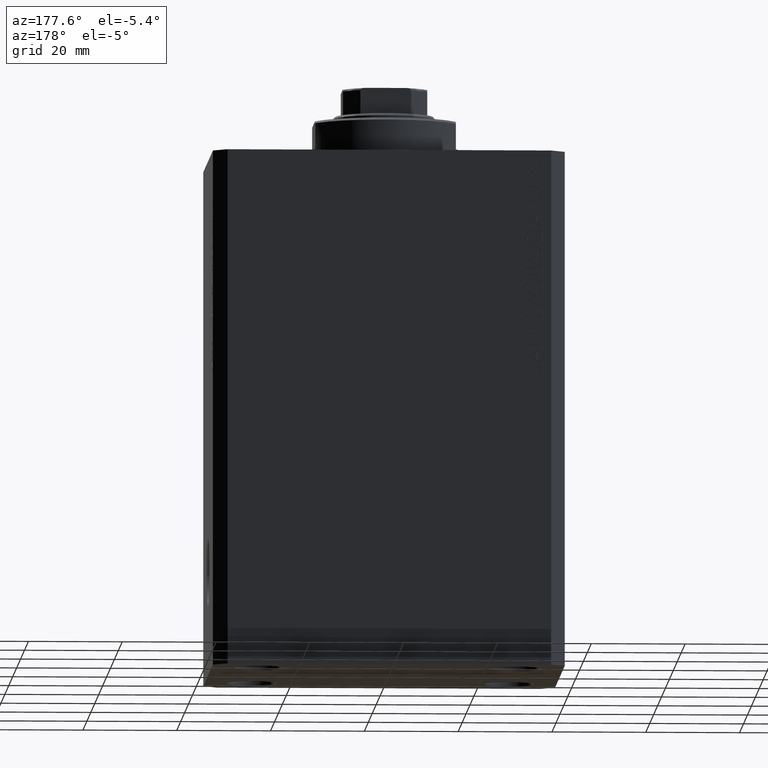
[diagram: clean part render]
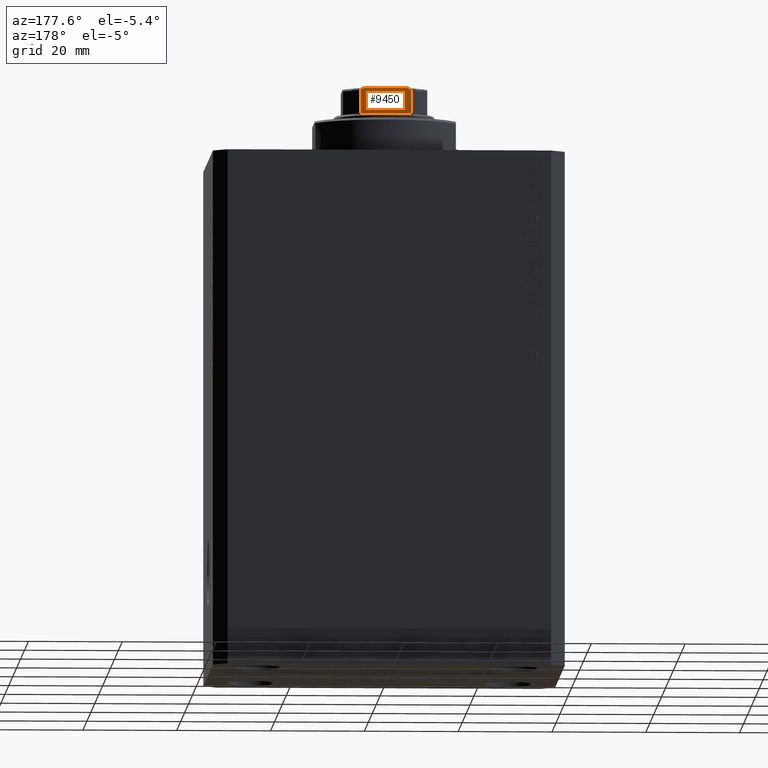
[diagram: same view with one face highlighted and labeled with its STEP entity id]
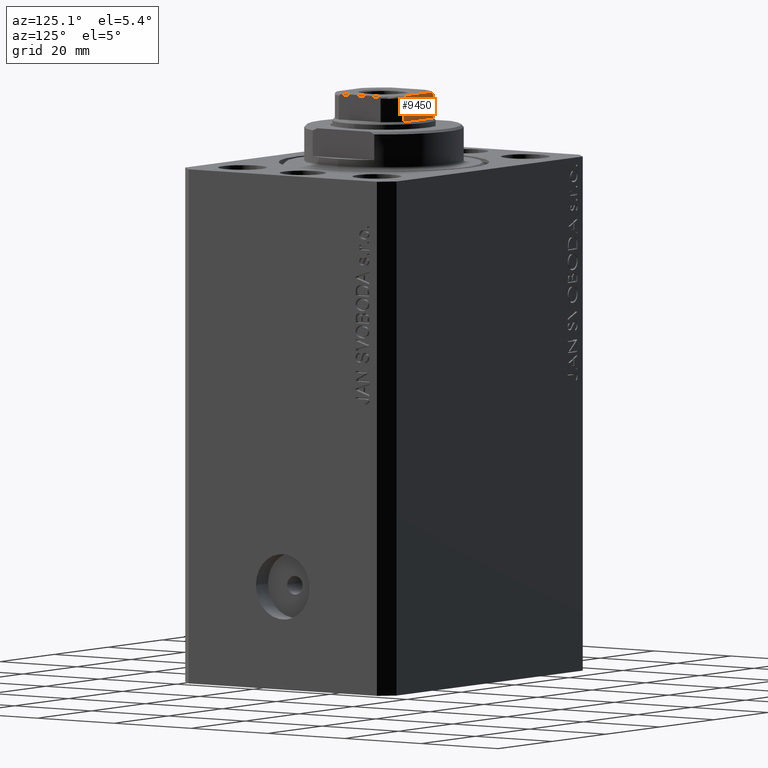
[diagram: same view with one face highlighted and labeled with its STEP entity id]
A machine part, auxiliary view. The second image highlights one B-rep face of the part: STEP entity #9450.
A second angle (auxiliary view) of the same face is appended — the face is thin or edge-on in the first view.
In plain terms, the highlighted planar face has unit normal (0, -1, 0).
Its self-contained STEP definition (entity closure, byte-faithful):
#22 = CARTESIAN_POINT ( 'NONE',  ( 5.074490744525495423, 8.999999999999998224, 114.9787200784332413 ) ) ;
#577 = DIRECTION ( 'NONE',  ( 0.000000000000000000, -1.000000000000000000, 0.000000000000000000 ) ) ;
#855 = CARTESIAN_POINT ( 'NONE',  ( 5.408326913195989682, 8.999999999999998224, 114.5999999999999801 ) ) ;
#1258 = ORIENTED_EDGE ( 'NONE', *, *, #8919, .F. ) ;
#1815 = EDGE_CURVE ( 'NONE', #19954, #35623, #11296, .T. ) ;
#2495 = CARTESIAN_POINT ( 'NONE',  ( 4.358898943540677529, 8.999999999999998224, 115.1000000000000085 ) ) ;
#2623 = B_SPLINE_CURVE_WITH_KNOTS ( 'NONE', 3,
 ( #23635, #37138, #14785, #22, #20056, #33766, #2975, #16664, #20264, #33971 ),
 .UNSPECIFIED., .F., .F.,
 ( 4, 2, 2, 2, 4 ),
 ( 8.673617379884035472E-19, 0.0006221106941441160391, 0.0009331660412161747091, 0.001088693714752204207, 0.001244221388288233596 ),
 .UNSPECIFIED. ) ;
#2806 = EDGE_CURVE ( 'NONE', #6307, #35216, #22099, .T. ) ;
#2975 = CARTESIAN_POINT ( 'NONE',  ( 5.335288102212765615, 8.999999999999998224, 114.7956905402762118 ) ) ;
#5017 = DIRECTION ( 'NONE',  ( -0.000000000000000000, -0.000000000000000000, 1.000000000000000000 ) ) ;
#5701 = CARTESIAN_POINT ( 'NONE',  ( -5.390954572107317766, 8.999999999999996447, 114.7053628521400128 ) ) ;
#6307 = VERTEX_POINT ( 'NONE', #11018 ) ;
#6429 = B_SPLINE_CURVE_WITH_KNOTS ( 'NONE', 3,
 ( #28690, #42607, #5701, #16017, #28455, #25514, #22771, #42394, #39009, #14510 ),
 .UNSPECIFIED., .F., .F.,
 ( 4, 2, 2, 2, 4 ),
 ( 2.823925224926892107E-17, 0.0001582447020888488214, 0.0003164894041776693994, 0.0006329788083552842634, 0.001265957616710501089 ),
 .UNSPECIFIED. ) ;
#6796 = EDGE_CURVE ( 'NONE', #19954, #6307, #12311, .T. ) ;
#7098 = EDGE_CURVE ( 'NONE', #35216, #28186, #6429, .T. ) ;
#7326 = DIRECTION ( 'NONE',  ( 0.000000000000000000, -0.000000000000000000, -1.000000000000000000 ) ) ;
#7551 = VECTOR ( 'NONE', #25008, 1000.000000000000000 ) ;
#8919 = EDGE_CURVE ( 'NONE', #43582, #28186, #28620, .T. ) ;
#9450 = ADVANCED_FACE ( 'NONE', ( #17650 ), #14960, .F. ) ;
#11018 = CARTESIAN_POINT ( 'NONE',  ( -5.408326913195986130, 8.999999999999998224, 109.5999999999999943 ) ) ;
#11174 = ORIENTED_EDGE ( 'NONE', *, *, #6796, .T. ) ;
#11296 = LINE ( 'NONE', #38940, #7551 ) ;
#11520 = CARTESIAN_POINT ( 'NONE',  ( -9.000000000000000000, 8.999999999999998224, 115.1000000000000085 ) ) ;
#12311 = LINE ( 'NONE', #36816, #27666 ) ;
#14087 = AXIS2_PLACEMENT_3D ( 'NONE', #28681, #577, #7326 ) ;
#14510 = CARTESIAN_POINT ( 'NONE',  ( -4.358898943540678417, 8.999999999999998224, 115.1000000000000085 ) ) ;
#14785 = CARTESIAN_POINT ( 'NONE',  ( 4.775913644518309908, 8.999999999999998224, 115.0781460743083500 ) ) ;
#14960 = PLANE ( 'NONE',  #14087 ) ;
#15541 = ORIENTED_EDGE ( 'NONE', *, *, #41630, .T. ) ;
#15570 = CARTESIAN_POINT ( 'NONE',  ( -5.408326913195988794, 8.999999999999998224, -0.001000000000001000089 ) ) ;
#16017 = CARTESIAN_POINT ( 'NONE',  ( -5.335664150027714214, 9.000000000000000000, 114.7951843380013059 ) ) ;
#16125 = DIRECTION ( 'NONE',  ( -1.000000000000000000, -0.000000000000000000, -0.000000000000000000 ) ) ;
#16664 = CARTESIAN_POINT ( 'NONE',  ( 5.390945448132530515, 8.999999999999996447, 114.7054816538970385 ) ) ;
#17650 = FACE_OUTER_BOUND ( 'NONE', #42198, .T. ) ;
#18232 = ORIENTED_EDGE ( 'NONE', *, *, #1815, .F. ) ;
#19156 = DIRECTION ( 'NONE',  ( -1.000000000000000000, -0.000000000000000000, -0.000000000000000000 ) ) ;
#19954 = VERTEX_POINT ( 'NONE', #26329 ) ;
#20056 = CARTESIAN_POINT ( 'NONE',  ( 5.173732970196589953, 9.000000000000000000, 114.9331808643798780 ) ) ;
#20264 = CARTESIAN_POINT ( 'NONE',  ( 5.408326913195987906, 9.000000000000000000, 114.6537434673188471 ) ) ;
#21934 = VECTOR ( 'NONE', #5017, 1000.000000000000000 ) ;
#22099 = LINE ( 'NONE', #15570, #21934 ) ;
#22771 = CARTESIAN_POINT ( 'NONE',  ( -5.077896145217225765, 8.999999999999998224, 114.9773016776067038 ) ) ;
#22949 = ORIENTED_EDGE ( 'NONE', *, *, #2806, .T. ) ;
#23635 = CARTESIAN_POINT ( 'NONE',  ( 4.358898943540677529, 8.999999999999998224, 115.1000000000000085 ) ) ;
#25008 = DIRECTION ( 'NONE',  ( -0.000000000000000000, -0.000000000000000000, 1.000000000000000000 ) ) ;
#25514 = CARTESIAN_POINT ( 'NONE',  ( -5.174818616237111257, 9.000000000000000000, 114.9325218846533119 ) ) ;
#26329 = CARTESIAN_POINT ( 'NONE',  ( 5.408326913195989682, 8.999999999999998224, 109.5999999999999943 ) ) ;
#27001 = CARTESIAN_POINT ( 'NONE',  ( -5.408326913195988794, 8.999999999999998224, 114.5999999999999801 ) ) ;
#27666 = VECTOR ( 'NONE', #16125, 1000.000000000000000 ) ;
#28186 = VERTEX_POINT ( 'NONE', #30686 ) ;
#28455 = CARTESIAN_POINT ( 'NONE',  ( -5.298186678102076108, 8.999999999999998224, 114.8338781215004616 ) ) ;
#28620 = LINE ( 'NONE', #11520, #36350 ) ;
#28681 = CARTESIAN_POINT ( 'NONE',  ( -9.000000000000000000, 8.999999999999998224, 115.1000000000000085 ) ) ;
#28690 = CARTESIAN_POINT ( 'NONE',  ( -5.408326913195988794, 8.999999999999998224, 114.5999999999999801 ) ) ;
#30686 = CARTESIAN_POINT ( 'NONE',  ( -4.358898943540678417, 8.999999999999998224, 115.1000000000000085 ) ) ;
#33766 = CARTESIAN_POINT ( 'NONE',  ( 5.297634495023415546, 9.000000000000000000, 114.8344228052780238 ) ) ;
#33971 = CARTESIAN_POINT ( 'NONE',  ( 5.408326913195989682, 8.999999999999998224, 114.5999999999999801 ) ) ;
#35216 = VERTEX_POINT ( 'NONE', #27001 ) ;
#35623 = VERTEX_POINT ( 'NONE', #855 ) ;
#36350 = VECTOR ( 'NONE', #19156, 1000.000000000000000 ) ;
#36816 = CARTESIAN_POINT ( 'NONE',  ( -9.000000000000000000, 8.999999999999998224, 109.6000000000000085 ) ) ;
#37138 = CARTESIAN_POINT ( 'NONE',  ( 4.569272810556672226, 8.999999999999998224, 115.0999999999999943 ) ) ;
#37501 = ORIENTED_EDGE ( 'NONE', *, *, #7098, .T. ) ;
#38940 = CARTESIAN_POINT ( 'NONE',  ( 5.408326913195989682, 8.999999999999998224, -0.001000000000001000089 ) ) ;
#39009 = CARTESIAN_POINT ( 'NONE',  ( -4.569278586016984001, 8.999999999999996447, 115.0999999999999801 ) ) ;
#41630 = EDGE_CURVE ( 'NONE', #43582, #35623, #2623, .T. ) ;
#42198 = EDGE_LOOP ( 'NONE', ( #1258, #15541, #18232, #11174, #22949, #37501 ) ) ;
#42394 = CARTESIAN_POINT ( 'NONE',  ( -4.778533838065913919, 8.999999999999996447, 115.0778291476469519 ) ) ;
#42607 = CARTESIAN_POINT ( 'NONE',  ( -5.408326913195990571, 9.000000000000001776, 114.6535720727335388 ) ) ;
#43582 = VERTEX_POINT ( 'NONE', #2495 ) ;